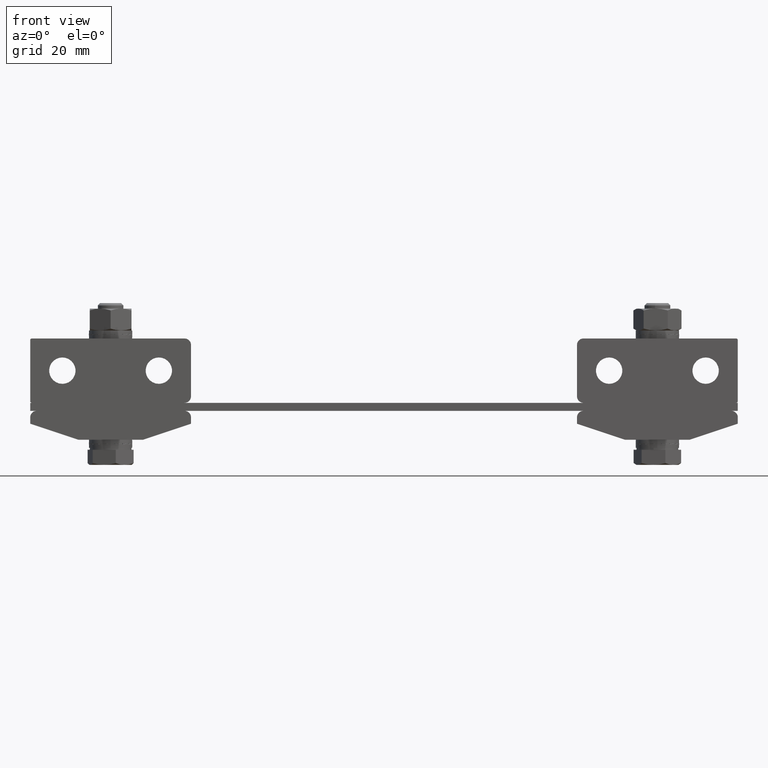
[diagram: clean part render]
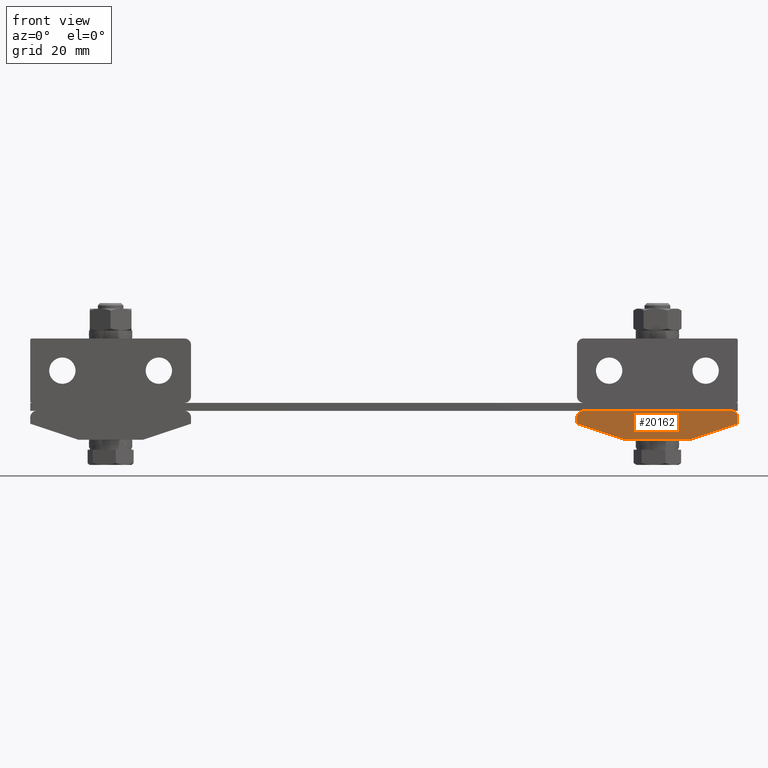
[diagram: same view with one face highlighted and labeled with its STEP entity id]
A machine part, front view. The second image highlights one B-rep face of the part: STEP entity #20162.
In plain terms, the highlighted planar face has unit normal (0, 1, 0).
Its self-contained STEP definition (entity closure, byte-faithful):
#60 = DIRECTION ( 'NONE',  ( 0.0000000000000000000, 1.000000000000000000, 0.0000000000000000000 ) ) ;
#250 = DIRECTION ( 'NONE',  ( -0.0000000000000000000, -1.000000000000000000, -0.0000000000000000000 ) ) ;
#394 = VECTOR ( 'NONE', #19221, 999.9999999999998900 ) ;
#660 = AXIS2_PLACEMENT_3D ( 'NONE', #14069, #250, #10824 ) ;
#782 = ORIENTED_EDGE ( 'NONE', *, *, #1320, .T. ) ;
#798 = CARTESIAN_POINT ( 'NONE',  ( 60.00000000000000000, -12.50000000000000000, -4.000000000000000000 ) ) ;
#914 = VECTOR ( 'NONE', #7214, 999.9999999999998900 ) ;
#1320 = EDGE_CURVE ( 'NONE', #18528, #2850, #1997, .T. ) ;
#1781 = LINE ( 'NONE', #17691, #13755 ) ;
#1997 = CIRCLE ( 'NONE', #660, 2.000000000000000000 ) ;
#2440 = DIRECTION ( 'NONE',  ( 0.0000000000000000000, 0.0000000000000000000, 1.000000000000000000 ) ) ;
#2850 = VERTEX_POINT ( 'NONE', #5535 ) ;
#3281 = ORIENTED_EDGE ( 'NONE', *, *, #15888, .T. ) ;
#3354 = PLANE ( 'NONE',  #19257 ) ;
#3711 = VERTEX_POINT ( 'NONE', #5683 ) ;
#3964 = CIRCLE ( 'NONE', #19530, 2.000000000000000000 ) ;
#4449 = LINE ( 'NONE', #19092, #394 ) ;
#5275 = CARTESIAN_POINT ( 'NONE',  ( 110.0000000000000000, -12.50000000000000000, -4.000000000000000000 ) ) ;
#5535 = CARTESIAN_POINT ( 'NONE',  ( 108.0000000000000000, -12.50000000000000000, 0.0000000000000000000 ) ) ;
#5638 = EDGE_CURVE ( 'NONE', #15343, #20226, #4449, .T. ) ;
#5676 = EDGE_CURVE ( 'NONE', #5859, #3711, #3964, .T. ) ;
#5683 = CARTESIAN_POINT ( 'NONE',  ( 60.00000000000000000, -12.50000000000000000, -2.000000000000000000 ) ) ;
#5859 = VERTEX_POINT ( 'NONE', #7517 ) ;
#5945 = VECTOR ( 'NONE', #17091, 1000.000000000000000 ) ;
#5964 = ORIENTED_EDGE ( 'NONE', *, *, #5638, .T. ) ;
#6071 = LINE ( 'NONE', #16897, #7293 ) ;
#6086 = CARTESIAN_POINT ( 'NONE',  ( 110.0000000000000000, -12.50000000000000000, 0.0000000000000000000 ) ) ;
#6600 = ORIENTED_EDGE ( 'NONE', *, *, #8148, .T. ) ;
#7143 = CARTESIAN_POINT ( 'NONE',  ( 95.00000000000000000, -12.50000000000000000, -9.000000000000000000 ) ) ;
#7214 = DIRECTION ( 'NONE',  ( 0.9486832980505137700, 0.0000000000000000000, -0.3162277660168380000 ) ) ;
#7293 = VECTOR ( 'NONE', #18479, 1000.000000000000000 ) ;
#7517 = CARTESIAN_POINT ( 'NONE',  ( 62.00000000000000000, -12.50000000000000000, 0.0000000000000000000 ) ) ;
#8012 = VERTEX_POINT ( 'NONE', #798 ) ;
#8148 = EDGE_CURVE ( 'NONE', #3711, #8012, #6071, .T. ) ;
#8842 = ORIENTED_EDGE ( 'NONE', *, *, #13787, .T. ) ;
#9790 = VERTEX_POINT ( 'NONE', #10771 ) ;
#10151 = DIRECTION ( 'NONE',  ( -0.0000000000000000000, -1.000000000000000000, -0.0000000000000000000 ) ) ;
#10771 = CARTESIAN_POINT ( 'NONE',  ( 75.00000000000000000, -12.50000000000000000, -9.000000000000000000 ) ) ;
#10824 = DIRECTION ( 'NONE',  ( 0.0000000000000000000, 0.0000000000000000000, 1.000000000000000000 ) ) ;
#10838 = LINE ( 'NONE', #6086, #5945 ) ;
#10887 = DIRECTION ( 'NONE',  ( 0.0000000000000000000, 0.0000000000000000000, 1.000000000000000000 ) ) ;
#11149 = DIRECTION ( 'NONE',  ( 1.000000000000000000, 0.0000000000000000000, 0.0000000000000000000 ) ) ;
#12531 = LINE ( 'NONE', #13915, #13046 ) ;
#12860 = FACE_OUTER_BOUND ( 'NONE', #17628, .T. ) ;
#13046 = VECTOR ( 'NONE', #14123, 1000.000000000000000 ) ;
#13556 = CARTESIAN_POINT ( 'NONE',  ( 58.79999999999999700, -12.50000000000000000, -3.600000000000000100 ) ) ;
#13755 = VECTOR ( 'NONE', #11149, 1000.000000000000000 ) ;
#13787 = EDGE_CURVE ( 'NONE', #8012, #9790, #16294, .T. ) ;
#13829 = ORIENTED_EDGE ( 'NONE', *, *, #14459, .F. ) ;
#13915 = CARTESIAN_POINT ( 'NONE',  ( 60.00000000000000000, -12.50000000000000000, -9.000000000000000000 ) ) ;
#14069 = CARTESIAN_POINT ( 'NONE',  ( 108.0000000000000000, -12.50000000000000000, -2.000000000000000000 ) ) ;
#14123 = DIRECTION ( 'NONE',  ( 1.000000000000000000, 0.0000000000000000000, 0.0000000000000000000 ) ) ;
#14459 = EDGE_CURVE ( 'NONE', #18528, #20226, #10838, .T. ) ;
#14904 = CARTESIAN_POINT ( 'NONE',  ( 62.00000000000000000, -12.50000000000000000, -2.000000000000000000 ) ) ;
#15343 = VERTEX_POINT ( 'NONE', #7143 ) ;
#15655 = ORIENTED_EDGE ( 'NONE', *, *, #5676, .T. ) ;
#15888 = EDGE_CURVE ( 'NONE', #9790, #15343, #12531, .T. ) ;
#16033 = EDGE_CURVE ( 'NONE', #5859, #2850, #1781, .T. ) ;
#16294 = LINE ( 'NONE', #13556, #914 ) ;
#16547 = ORIENTED_EDGE ( 'NONE', *, *, #16033, .F. ) ;
#16897 = CARTESIAN_POINT ( 'NONE',  ( 60.00000000000000000, -12.50000000000000000, 0.0000000000000000000 ) ) ;
#17091 = DIRECTION ( 'NONE',  ( 0.0000000000000000000, 0.0000000000000000000, -1.000000000000000000 ) ) ;
#17515 = CARTESIAN_POINT ( 'NONE',  ( 60.00000000000000000, -12.50000000000000000, 0.0000000000000000000 ) ) ;
#17628 = EDGE_LOOP ( 'NONE', ( #13829, #782, #16547, #15655, #6600, #8842, #3281, #5964 ) ) ;
#17691 = CARTESIAN_POINT ( 'NONE',  ( 60.00000000000000000, -12.50000000000000000, 0.0000000000000000000 ) ) ;
#18361 = CARTESIAN_POINT ( 'NONE',  ( 110.0000000000000000, -12.50000000000000000, -2.000000000000000000 ) ) ;
#18479 = DIRECTION ( 'NONE',  ( 0.0000000000000000000, 0.0000000000000000000, -1.000000000000000000 ) ) ;
#18528 = VERTEX_POINT ( 'NONE', #18361 ) ;
#19092 = CARTESIAN_POINT ( 'NONE',  ( 66.19999999999998900, -12.50000000000000000, -18.59999999999999800 ) ) ;
#19221 = DIRECTION ( 'NONE',  ( 0.9486832980505137700, 0.0000000000000000000, 0.3162277660168380000 ) ) ;
#19257 = AXIS2_PLACEMENT_3D ( 'NONE', #17515, #60, #10887 ) ;
#19530 = AXIS2_PLACEMENT_3D ( 'NONE', #14904, #10151, #2440 ) ;
#20162 = ADVANCED_FACE ( 'NONE', ( #12860 ), #3354, .F. ) ;
#20226 = VERTEX_POINT ( 'NONE', #5275 ) ;